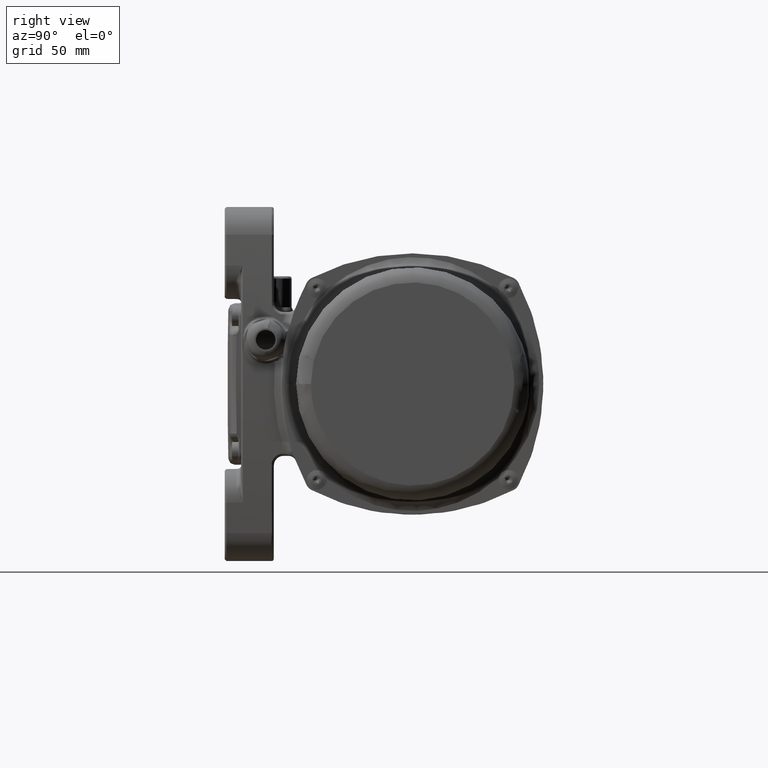
[diagram: clean part render]
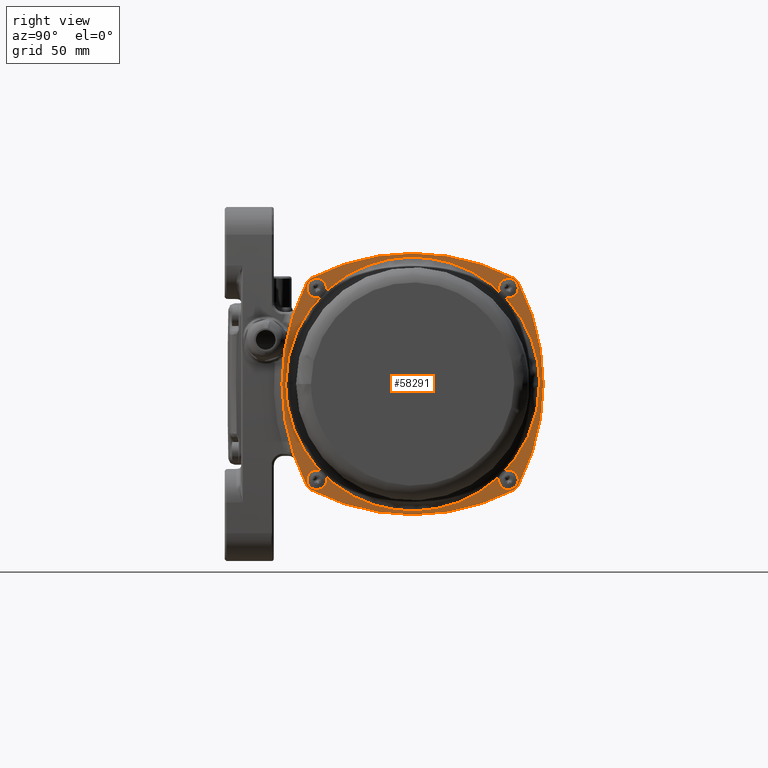
[diagram: same view with one face highlighted and labeled with its STEP entity id]
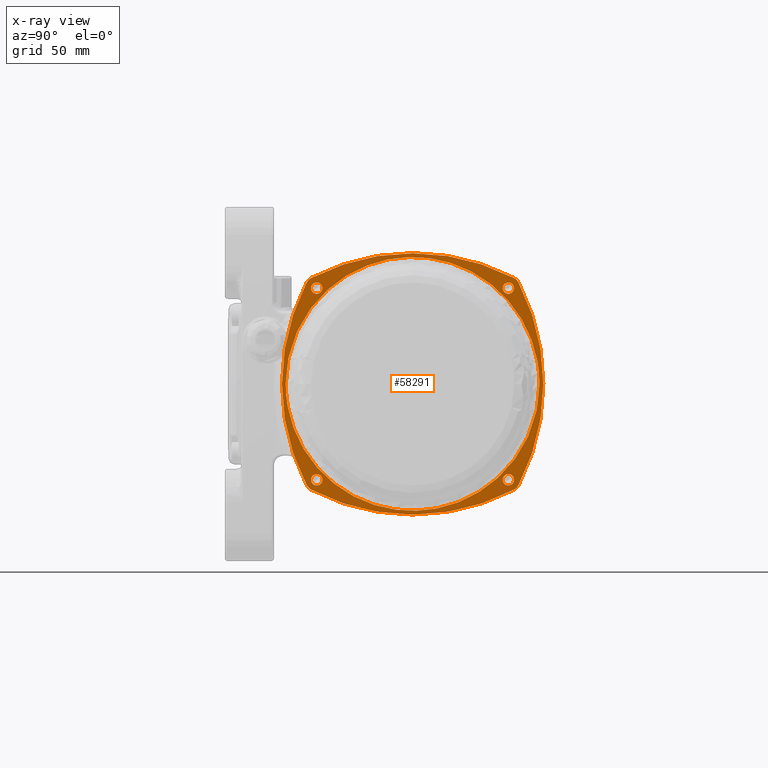
[diagram: x-ray of the same camera — body ghosted, the highlighted face saturated]
A machine part, right view. The second image highlights one B-rep face of the part: STEP entity #58291.
The next image is the same camera in x-ray: the body ghosted, the highlighted face saturated — about 0% of this face is hidden behind the body in this view.
In plain terms, the highlighted planar face has unit normal (1, -0, -0).
Its self-contained STEP definition (entity closure, byte-faithful):
#5 = CARTESIAN_POINT ( 'NONE',  ( 80.19999999999859600, 150.9799825991071600, -68.86753657182104900 ) ) ;
#194 = CARTESIAN_POINT ( 'NONE',  ( 80.19999999999836900, 72.62133897738370100, -65.12577603979583800 ) ) ;
#532 = CARTESIAN_POINT ( 'NONE',  ( 80.19999999999825500, 42.55207429368724100, 28.08260039417437400 ) ) ;
#637 = CARTESIAN_POINT ( 'NONE',  ( 80.19999999999828300, 45.46462305897605900, 34.67430247577185300 ) ) ;
#1061 = CARTESIAN_POINT ( 'NONE',  ( 80.19999999999836900, 79.16631415789329700, 68.94377165543974700 ) ) ;
#1350 = CARTESIAN_POINT ( 'NONE',  ( 80.19999999999868100, 176.1632698643624300, 47.93875855060392200 ) ) ;
#1708 = EDGE_CURVE ( 'NONE', #21956, #21956, #33092, .T. ) ;
#2140 = CARTESIAN_POINT ( 'NONE',  ( 80.19999999999871000, 191.4297175979648100, -13.99248577885800900 ) ) ;
#2226 = CARTESIAN_POINT ( 'NONE',  ( 80.19999999999858200, 158.4907685807945100, -64.38974392060535500 ) ) ;
#2322 = CARTESIAN_POINT ( 'NONE',  ( 80.19999999999846800, 112.6239196339482600, -77.70001621762439500 ) ) ;
#2417 = CARTESIAN_POINT ( 'NONE',  ( 80.19999999999838300, 83.39953906687071600, -71.00465306964903800 ) ) ;
#2511 = CARTESIAN_POINT ( 'NONE',  ( 80.19999999999825500, 49.24333705440260900, -41.41369409037635300 ) ) ;
#3175 = CARTESIAN_POINT ( 'NONE',  ( 80.19999999999855300, 135.3340558239235300, 74.99323758172485600 ) ) ;
#3444 = FACE_BOUND ( 'NONE', #124333, .T. ) ;
#3676 = CARTESIAN_POINT ( 'NONE',  ( 80.19999999999872400, 191.3886807148080300, 14.21481246684500600 ) ) ;
#4024 = DIRECTION ( 'NONE',  ( -1.000000000000000000, -2.553247579601915400E-015, 1.095781623858763900E-016 ) ) ;
#4634 = CARTESIAN_POINT ( 'NONE',  ( 80.19999999999826900, 46.13246342815289600, -35.97998259906626100 ) ) ;
#4737 = CARTESIAN_POINT ( 'NONE',  ( 80.19999999999825500, 38.62555035988853500, -14.29107560081424200 ) ) ;
#4866 = CARTESIAN_POINT ( 'NONE',  ( 80.19999999999831200, 65.50667284944728400, 59.89835687458333500 ) ) ;
#5191 = ORIENTED_EDGE ( 'NONE', *, *, #70279, .T. ) ;
#5405 = CARTESIAN_POINT ( 'NONE',  ( 80.19999999999836900, 85.87121331642342200, 72.03367316343592100 ) ) ;
#5589 = CARTESIAN_POINT ( 'NONE',  ( 80.19999999999862400, 155.5700417191543500, 66.27313777822422500 ) ) ;
#5690 = CARTESIAN_POINT ( 'NONE',  ( 80.19999999999869500, 187.1243960893374700, 28.90273369626340400 ) ) ;
#6351 = CARTESIAN_POINT ( 'NONE',  ( 80.19999999999869500, 185.0381111009422700, -33.65555184965100500 ) ) ;
#6532 = CARTESIAN_POINT ( 'NONE',  ( 80.19999999999838300, 94.66594417625130100, -74.99323758174225000 ) ) ;
#6723 = CARTESIAN_POINT ( 'NONE',  ( 80.19999999999826900, 40.61224931771577900, -22.44840525261978900 ) ) ;
#6955 = CARTESIAN_POINT ( 'NONE',  ( 80.19999999999822600, 38.82298461586766800, 15.35883374503443500 ) ) ;
#7141 = EDGE_CURVE ( 'NONE', #109365, #48003, #131660, .T. ) ;
#7487 = CARTESIAN_POINT ( 'NONE',  ( 80.19999999999841100, 80.46672867614469700, 69.61632036099959500 ) ) ;
#7743 = DIRECTION ( 'NONE',  ( 1.000000000000000000, -2.857509198010490300E-015, 5.301178615226510500E-015 ) ) ;
#8071 = FACE_BOUND ( 'NONE', #68252, .T. ) ;
#8118 = DIRECTION ( 'NONE',  ( 1.000000000000000000, 2.553247579601915400E-015, -1.095781623858763900E-016 ) ) ;
#8299 = DIRECTION ( 'NONE',  ( 5.571751238825134900E-015, 0.0000000000000000000, -1.000000000000000000 ) ) ;
#8568 = CARTESIAN_POINT ( 'NONE',  ( 80.19999999999869500, 189.7855249239890200, -21.08129963454412300 ) ) ;
#8749 = CARTESIAN_POINT ( 'NONE',  ( 80.19999999999841100, 109.0745432128569800, -77.53788177158922700 ) ) ;
#8857 = CARTESIAN_POINT ( 'NONE',  ( 80.19999999999839700, 88.47902305341348500, -73.03862538002873400 ) ) ;
#8949 = CARTESIAN_POINT ( 'NONE',  ( 80.19999999999829800, 53.83673013552249400, -47.93875855042821100 ) ) ;
#9176 = CARTESIAN_POINT ( 'NONE',  ( 80.19999999999826900, 47.53911634832561400, 38.59240479862607000 ) ) ;
#9281 = AXIS2_PLACEMENT_3D ( 'NONE', #15206, #103074, #83748 ) ;
#9378 = CARTESIAN_POINT ( 'NONE',  ( 80.19999999999825500, 38.24250200229475600, 12.09191294807103600 ) ) ;
#9517 = CARTESIAN_POINT ( 'NONE',  ( 80.19999999999831200, 65.76698411111496500, 60.11248587712410100 ) ) ;
#9608 = CARTESIAN_POINT ( 'NONE',  ( 80.19999999999853900, 128.1156579485853800, 76.58609322671679800 ) ) ;
#9703 = CARTESIAN_POINT ( 'NONE',  ( 80.19999999999858200, 144.8088007224792800, 71.76638672674565100 ) ) ;
#9888 = CARTESIAN_POINT ( 'NONE',  ( 80.19999999999866700, 173.8207830972197300, 50.77595529161301600 ) ) ;
#10104 = DIRECTION ( 'NONE',  ( 3.965082230804126700E-015, 0.0000000000000000000, -1.000000000000000000 ) ) ;
#10208 = ORIENTED_EDGE ( 'NONE', *, *, #123850, .T. ) ;
#10301 = ORIENTED_EDGE ( 'NONE', *, *, #66133, .T. ) ;
#10479 = AXIS2_PLACEMENT_3D ( 'NONE', #72256, #74378, #63666 ) ;
#10699 = CARTESIAN_POINT ( 'NONE',  ( 80.19999999999865300, 171.8384138481569000, -53.04595366568045700 ) ) ;
#10981 = CARTESIAN_POINT ( 'NONE',  ( 80.19999999999835400, 80.32569752411957600, -69.53537694095595600 ) ) ;
#11072 = CARTESIAN_POINT ( 'NONE',  ( 80.19999999999835400, 63.94389749811130500, -58.63240277140493400 ) ) ;
#11109 = AXIS2_PLACEMENT_3D ( 'NONE', #91778, #8118, #78810 ) ;
#11844 = CARTESIAN_POINT ( 'NONE',  ( 80.19999999999839700, 86.32508796332761800, 72.21527306471836000 ) ) ;
#12022 = CARTESIAN_POINT ( 'NONE',  ( 80.19999999999863900, 156.5478048787638800, 65.66019958535280000 ) ) ;
#12118 = CARTESIAN_POINT ( 'NONE',  ( 80.19999999999868100, 183.9437716554747100, 35.83368584204140500 ) ) ;
#12216 = CARTESIAN_POINT ( 'NONE',  ( 80.19999999999868100, 189.6125547181814000, 21.68554665506316000 ) ) ;
#12802 = CARTESIAN_POINT ( 'NONE',  ( 80.19999999999869500, 189.7225840281503500, -21.30332561212014800 ) ) ;
#12983 = CARTESIAN_POINT ( 'NONE',  ( 80.19999999999842500, 101.3727720529081200, -76.49593818599271300 ) ) ;
#13091 = CARTESIAN_POINT ( 'NONE',  ( 80.19999999999844000, 102.9082883679026100, -76.75753525032969500 ) ) ;
#13183 = CARTESIAN_POINT ( 'NONE',  ( 80.19999999999836900, 79.81852091914562700, -69.27914406710861800 ) ) ;
#13424 = CARTESIAN_POINT ( 'NONE',  ( 80.19999999999828300, 39.72688432182958000, 19.28538114991150800 ) ) ;
#13525 = CARTESIAN_POINT ( 'NONE',  ( 80.19999999999828300, 49.87422396020232900, 42.37866102260751700 ) ) ;
#13962 = CARTESIAN_POINT ( 'NONE',  ( 80.19999999999841100, 93.54563705189120500, 74.67935623955220600 ) ) ;
#14026 = ORIENTED_EDGE ( 'NONE', *, *, #126173, .T. ) ;
#14239 = CARTESIAN_POINT ( 'NONE',  ( 80.19999999999863900, 175.1124858771155500, 49.23301588887522900 ) ) ;
#14464 = CIRCLE ( 'NONE', #44797, 6.999999999999999100 ) ;
#15010 = CARTESIAN_POINT ( 'NONE',  ( 80.19999999999869500, 189.9932375818629900, -20.33405582330410500 ) ) ;
#15206 = CARTESIAN_POINT ( 'NONE',  ( 80.19999999999871000, 173.6898628384820100, 58.68986283848499900 ) ) ;
#15297 = CARTESIAN_POINT ( 'NONE',  ( 80.19999999999841100, 93.76941419835928600, -74.74328154692793200 ) ) ;
#16038 = CARTESIAN_POINT ( 'NONE',  ( 80.19999999999846800, 100.5945498587809900, 76.35301836455130300 ) ) ;
#16100 = ORIENTED_EDGE ( 'NONE', *, *, #52018, .T. ) ;
#16134 = CARTESIAN_POINT ( 'NONE',  ( 80.19999999999841100, 86.24807423242684500, 72.18464689763141000 ) ) ;
#17491 = CARTESIAN_POINT ( 'NONE',  ( 80.19999999999834000, 66.28607783886296500, -60.53392266245984400 ) ) ;
#18268 = CARTESIAN_POINT ( 'NONE',  ( 80.19999999999844000, 105.5342900928534500, 77.26757660198278200 ) ) ;
#18459 = CARTESIAN_POINT ( 'NONE',  ( 80.19999999999861000, 150.1814790808371100, 69.27914406711136100 ) ) ;
#19049 = DIRECTION ( 'NONE',  ( 1.000000000000000000, -2.857509198010490300E-015, 5.301178615226510500E-015 ) ) ;
#19324 = CARTESIAN_POINT ( 'NONE',  ( 80.19999999999869500, 191.4163119426009400, -14.06551112342745000 ) ) ;
#19375 = ORIENTED_EDGE ( 'NONE', *, *, #19599, .T. ) ;
#19503 = CARTESIAN_POINT ( 'NONE',  ( 80.19999999999848200, 130.2050840612508000, -76.19885092240585300 ) ) ;
#19599 = EDGE_CURVE ( 'NONE', #118355, #118355, #118043, .T. ) ;
#19607 = CARTESIAN_POINT ( 'NONE',  ( 80.19999999999835400, 79.60163066874207500, -69.16828730819868600 ) ) ;
#20170 = AXIS2_PLACEMENT_3D ( 'NONE', #23248, #34399, #79378 ) ;
#20241 = CIRCLE ( 'NONE', #81717, 134.5000000000000000 ) ;
#20302 = VERTEX_POINT ( 'NONE', #121646 ) ;
#20354 = CARTESIAN_POINT ( 'NONE',  ( 80.19999999999855300, 135.8572917092313000, 74.84855087070324900 ) ) ;
#20635 = CARTESIAN_POINT ( 'NONE',  ( 80.19999999999868100, 187.1846468976435700, 28.75192576754365700 ) ) ;
#21406 = CARTESIAN_POINT ( 'NONE',  ( 80.19999999999869500, 180.6601995852499000, -41.54780487895308700 ) ) ;
#21956 = VERTEX_POINT ( 'NONE', #30508 ) ;
#22470 = CARTESIAN_POINT ( 'NONE',  ( 80.19999999999838300, 77.27581097595404500, 67.93336928728769000 ) ) ;
#22651 = CARTESIAN_POINT ( 'NONE',  ( 80.19999999999856800, 137.6032761959080800, 74.35053941862628300 ) ) ;
#22749 = CARTESIAN_POINT ( 'NONE',  ( 80.19999999999859600, 150.6139277760318600, 69.05754747943888100 ) ) ;
#22839 = CARTESIAN_POINT ( 'NONE',  ( 80.19999999999862400, 168.0459536661782600, 56.83841384762605700 ) ) ;
#23042 = CARTESIAN_POINT ( 'NONE',  ( 80.19999999999871000, 192.7000000000000200, 6.538406516772830100E-013 ) ) ;
#23178 = AXIS2_PLACEMENT_3D ( 'NONE', #29827, #4024, #63984 ) ;
#23248 = CARTESIAN_POINT ( 'NONE',  ( 80.19999999999790000, 115.0000000000000000, -54.50000000000000000 ) ) ;
#23522 = CARTESIAN_POINT ( 'NONE',  ( 80.19999999999865300, 167.5370030073555700, -57.27396544868995000 ) ) ;
#23608 = CARTESIAN_POINT ( 'NONE',  ( 80.19999999999859600, 156.4136940905452800, -65.75666294549181100 ) ) ;
#23691 = CARTESIAN_POINT ( 'NONE',  ( 80.19999999999841100, 94.14270829086201800, -74.84855087071191800 ) ) ;
#24237 = CARTESIAN_POINT ( 'NONE',  ( 80.19999999999829800, 54.46607733749650000, 48.71392216110109500 ) ) ;
#25240 = DIRECTION ( 'NONE',  ( -2.954653712665175000E-015, -1.000000000000000000, -1.387778780781411900E-017 ) ) ;
#25733 = CARTESIAN_POINT ( 'NONE',  ( 80.19999999999865300, 168.9940884232132700, -55.89031851445093900 ) ) ;
#25919 = CARTESIAN_POINT ( 'NONE',  ( 80.19999999999842500, 104.9594062788916500, -77.06494706605407400 ) ) ;
#25931 = VERTEX_POINT ( 'NONE', #74018 ) ;
#26022 = CARTESIAN_POINT ( 'NONE',  ( 80.19999999999838300, 86.54702658113249900, -72.30300491912001300 ) ) ;
#26308 = CARTESIAN_POINT ( 'NONE',  ( 80.19999999999871000, 176.9114528322640200, 64.90360969501090000 ) ) ;
#26361 = CARTESIAN_POINT ( 'NONE',  ( 80.19999999999826900, 42.72556374084108900, 28.52546882111943600 ) ) ;
#26568 = CARTESIAN_POINT ( 'NONE',  ( 80.19999999999825500, 40.21447507604532500, 21.08129963469678700 ) ) ;
#26785 = CARTESIAN_POINT ( 'NONE',  ( 80.19999999999849600, 110.2478392679334900, 77.69996756481275200 ) ) ;
#26886 = CARTESIAN_POINT ( 'NONE',  ( 80.19999999999858200, 146.6004609330574900, 71.00465306965627100 ) ) ;
#27064 = CARTESIAN_POINT ( 'NONE',  ( 80.19999999999866700, 180.7566629455949400, 41.41369409038097200 ) ) ;
#28234 = CARTESIAN_POINT ( 'NONE',  ( 80.19999999999826900, 46.24715546202788400, -36.19922853004394600 ) ) ;
#28237 = DIRECTION ( 'NONE',  ( 7.930164461608253300E-015, 1.000000000000000000, 0.0000000000000000000 ) ) ;
#28466 = CARTESIAN_POINT ( 'NONE',  ( 80.19999999999831200, 64.22404470882601400, 58.82078309765950100 ) ) ;
#28987 = CARTESIAN_POINT ( 'NONE',  ( 80.19999999999842500, 94.81332118048628400, 75.04218403642818200 ) ) ;
#29282 = CARTESIAN_POINT ( 'NONE',  ( 80.19999999999868100, 186.8195593426826000, 29.65513131258349200 ) ) ;
#29374 = CARTESIAN_POINT ( 'NONE',  ( 80.19999999999871000, 190.0421840363760000, 20.18667881969371800 ) ) ;
#29827 = CARTESIAN_POINT ( 'NONE',  ( 80.19999999999829800, 56.31013716151569800, 58.68986283848379800 ) ) ;
#29958 = CARTESIAN_POINT ( 'NONE',  ( 80.19999999999868100, 180.2146697010023500, -42.24173237119038000 ) ) ;
#30143 = CARTESIAN_POINT ( 'NONE',  ( 80.19999999999842500, 99.64116625501645800, -76.17701538411927200 ) ) ;
#30244 = CARTESIAN_POINT ( 'NONE',  ( 80.19999999999834000, 74.42995828078777300, -66.27313777816975500 ) ) ;
#30344 = CARTESIAN_POINT ( 'NONE',  ( 80.19999999999838300, 86.69512902078149400, -72.36111198019691000 ) ) ;
#30508 = CARTESIAN_POINT ( 'NONE',  ( 80.19999999999869500, 173.6898628384820100, 55.18986283848499900 ) ) ;
#30537 = CARTESIAN_POINT ( 'NONE',  ( 80.19999999999825500, 40.34320000352962400, -21.53272938235000200 ) ) ;
#30579 = CARTESIAN_POINT ( 'NONE',  ( 80.19999999999826900, 37.30003243886481100, 2.376343309363998700 ) ) ;
#30685 = CARTESIAN_POINT ( 'NONE',  ( 80.19999999999829800, 53.84519461703672500, 47.93217319400359600 ) ) ;
#31111 = CARTESIAN_POINT ( 'NONE',  ( 80.19999999999844000, 96.61331505109787100, 75.51106378475388700 ) ) ;
#32176 = CARTESIAN_POINT ( 'NONE',  ( 80.19999999999866700, 175.7413265072916300, -48.45505787471788000 ) ) ;
#32554 = CARTESIAN_POINT ( 'NONE',  ( 80.19999999999829800, 51.26716224581233000, -44.45446057611685100 ) ) ;
#32684 = CARTESIAN_POINT ( 'NONE',  ( 80.19999999999825500, 40.64946058120780500, 22.60327619538036400 ) ) ;
#32778 = CARTESIAN_POINT ( 'NONE',  ( 80.19999999999831200, 50.69524732317439200, 43.63449236137663000 ) ) ;
#33092 = CIRCLE ( 'NONE', #9281, 3.500000000000003100 ) ;
#33480 = CARTESIAN_POINT ( 'NONE',  ( 80.19999999999856800, 160.2787090771358000, 63.16841519946616000 ) ) ;
#33701 = CARTESIAN_POINT ( 'NONE',  ( 80.19999999999829800, 56.31013716151650100, -58.68986283848330000 ) ) ;
#33782 = CARTESIAN_POINT ( 'NONE',  ( 80.19999999999819800, 22.99999999999944900, 6.610010967156719500E-013 ) ) ;
#33927 = DIRECTION ( 'NONE',  ( 1.000000000000000000, 2.553247579601915400E-015, -1.095781623858763900E-016 ) ) ;
#34276 = CARTESIAN_POINT ( 'NONE',  ( 80.19999999999872400, 190.7948905686539000, -17.17922018852097600 ) ) ;
#34356 = CARTESIAN_POINT ( 'NONE',  ( 80.19999999999859600, 157.6562608064604100, -64.94428725621322900 ) ) ;
#34399 = DIRECTION ( 'NONE',  ( 1.000000000000000000, -2.857509198010415400E-015, -5.520334939998260000E-015 ) ) ;
#34402 = CARTESIAN_POINT ( 'NONE',  ( 80.19999999999829800, 50.09639030498939900, 61.91145283226489900 ) ) ;
#34454 = CARTESIAN_POINT ( 'NONE',  ( 80.19999999999849600, 131.2686283202194200, -75.98223163102952100 ) ) ;
#34560 = CARTESIAN_POINT ( 'NONE',  ( 80.19999999999839700, 87.43684944979936800, -72.64806300882222000 ) ) ;
#34649 = CARTESIAN_POINT ( 'NONE',  ( 80.19999999999828300, 52.61727117469816800, -46.35520832443528900 ) ) ;
#35324 = CARTESIAN_POINT ( 'NONE',  ( 80.19999999999838300, 73.58630590908592200, 65.75666294530267900 ) ) ;
#35482 = ORIENTED_EDGE ( 'NONE', *, *, #125114, .T. ) ;
#35503 = CARTESIAN_POINT ( 'NONE',  ( 80.19999999999859600, 136.2305858016682100, 74.74328154692628300 ) ) ;
#35697 = CARTESIAN_POINT ( 'NONE',  ( 80.19999999999868100, 179.3897439205234100, 43.49076858092743700 ) ) ;
#35888 = CARTESIAN_POINT ( 'NONE',  ( 80.19999999999871000, 192.2675441594051100, 9.465885216442751800 ) ) ;
#36473 = CARTESIAN_POINT ( 'NONE',  ( 80.19999999999871000, 188.7809011873089800, -24.42353407662285400 ) ) ;
#36483 = EDGE_LOOP ( 'NONE', ( #19375 ) ) ;
#36565 = CARTESIAN_POINT ( 'NONE',  ( 80.19999999999856800, 147.7820535375337600, -70.46692059170408100 ) ) ;
#36859 = CARTESIAN_POINT ( 'NONE',  ( 80.19999999999824100, 42.78472693527894000, -28.67491203666370900 ) ) ;
#36960 = CARTESIAN_POINT ( 'NONE',  ( 80.19999999999825500, 38.60392847585548300, -14.17503420332892900 ) ) ;
#37500 = CARTESIAN_POINT ( 'NONE',  ( 80.19999999999855300, 136.0812996347386800, 74.78552492394625500 ) ) ;
#37686 = CARTESIAN_POINT ( 'NONE',  ( 80.19999999999863900, 163.7139221611296600, 60.53392266247448100 ) ) ;
#37778 = FACE_BOUND ( 'NONE', #122027, .T. ) ;
#37791 = CARTESIAN_POINT ( 'NONE',  ( 80.19999999999869500, 183.9823765162691700, 35.75930979025466200 ) ) ;
#37876 = CARTESIAN_POINT ( 'NONE',  ( 80.19999999999871000, 189.6793562395547500, 21.45436294809788100 ) ) ;
#38649 = CARTESIAN_POINT ( 'NONE',  ( 80.19999999999859600, 161.3552083244389600, -62.38272882528875100 ) ) ;
#38736 = CARTESIAN_POINT ( 'NONE',  ( 80.19999999999851100, 129.6721829455694600, -76.30241941016346600 ) ) ;
#38847 = CARTESIAN_POINT ( 'NONE',  ( 80.19999999999835400, 69.72129092333990700, -63.16841519979747200 ) ) ;
#38936 = CARTESIAN_POINT ( 'NONE',  ( 80.19999999999824100, 43.61837627415243200, -30.70337120668284600 ) ) ;
#39079 = CARTESIAN_POINT ( 'NONE',  ( 80.19999999999872400, 177.1898628384830100, -58.68986283848250500 ) ) ;
#39164 = CARTESIAN_POINT ( 'NONE',  ( 80.19999999999829800, 43.23361327317059700, 29.80880072237866300 ) ) ;
#39593 = CARTESIAN_POINT ( 'NONE',  ( 80.19999999999836900, 78.80077146973491200, 68.75284453785140200 ) ) ;
#39686 = CARTESIAN_POINT ( 'NONE',  ( 80.19999999999853900, 129.0655029385554300, 76.41631345717695500 ) ) ;
#39745 = ORIENTED_EDGE ( 'NONE', *, *, #132339, .T. ) ;
#39870 = CARTESIAN_POINT ( 'NONE',  ( 80.19999999999862400, 156.9644772399133200, 65.39342637636775600 ) ) ;
#40666 = CARTESIAN_POINT ( 'NONE',  ( 80.19999999999866700, 187.3611119802061500, -28.30487097919507600 ) ) ;
#40722 = CIRCLE ( 'NONE', #62094, 134.5000000000000300 ) ;
#41134 = CARTESIAN_POINT ( 'NONE',  ( 80.19999999999824100, 38.69758058988723100, -14.67218294577910600 ) ) ;
#41281 = CARTESIAN_POINT ( 'NONE',  ( 80.19999999999828300, 42.35193699119109600, 27.56315055017795100 ) ) ;
#41716 = CARTESIAN_POINT ( 'NONE',  ( 80.19999999999834000, 68.64479167532957100, 62.38272882505020800 ) ) ;
#41808 = CARTESIAN_POINT ( 'NONE',  ( 80.19999999999844000, 99.79491593860800000, 76.19885092237233000 ) ) ;
#42889 = CARTESIAN_POINT ( 'NONE',  ( 80.19999999999869500, 191.7574979977044100, -12.09191294784524100 ) ) ;
#42982 = CARTESIAN_POINT ( 'NONE',  ( 80.19999999999855300, 151.1992285301134300, -68.75284453792825400 ) ) ;
#43083 = CARTESIAN_POINT ( 'NONE',  ( 80.19999999999851100, 140.6276263234294400, -73.37135147938559500 ) ) ;
#43414 = CARTESIAN_POINT ( 'NONE',  ( 80.19999999999825500, 38.57028240203447200, 13.99248577887744100 ) ) ;
#43525 = CARTESIAN_POINT ( 'NONE',  ( 80.19999999999829800, 43.99534693019690900, 31.60046093288075400 ) ) ;
#43726 = CARTESIAN_POINT ( 'NONE',  ( 80.19999999999825500, 42.69699508088125800, 28.45297341886417200 ) ) ;
#43959 = CARTESIAN_POINT ( 'NONE',  ( 80.19999999999845400, 93.08534625187708400, 74.54584057707543800 ) ) ;
#44139 = CARTESIAN_POINT ( 'NONE',  ( 80.19999999999861000, 149.6743024758486100, 69.53537694095994900 ) ) ;
#44239 = CARTESIAN_POINT ( 'NONE',  ( 80.19999999999868100, 183.8675365718459600, 35.97998259906837100 ) ) ;
#44244 = VERTEX_POINT ( 'NONE', #102100 ) ;
#44440 = CARTESIAN_POINT ( 'NONE',  ( 80.19999999999871000, 191.3530183645392200, 14.40545014125746800 ) ) ;
#44537 = DIRECTION ( 'NONE',  ( 1.000000000000000000, -2.954653712665175000E-015, -1.095781623858763900E-016 ) ) ;
#44797 = AXIS2_PLACEMENT_3D ( 'NONE', #89204, #7743, #82743 ) ;
#44799 = AXIS2_PLACEMENT_3D ( 'NONE', #113927, #73134, #107493 ) ;
#44801 = CIRCLE ( 'NONE', #11109, 6.999999999999999100 ) ;
#45033 = CARTESIAN_POINT ( 'NONE',  ( 80.19999999999869500, 187.4479257063347000, -28.08260039414702200 ) ) ;
#46144 = CARTESIAN_POINT ( 'NONE',  ( 80.19999999999855300, 128.6272279470875000, 76.49593818598744100 ) ) ;
#46335 = CARTESIAN_POINT ( 'NONE',  ( 80.19999999999861000, 162.1440680398727400, 61.76981873845226500 ) ) ;
#46429 = CARTESIAN_POINT ( 'NONE',  ( 80.19999999999866700, 179.6673862137359400, 43.07490384262853700 ) ) ;
#46539 = DIRECTION ( 'NONE',  ( -1.000000000000000000, 2.857509198010490300E-015, -5.301178615226510500E-015 ) ) ;
#47115 = CARTESIAN_POINT ( 'NONE',  ( 80.19999999999865300, 178.1684151990170100, -45.27870907774342200 ) ) ;
#47210 = CARTESIAN_POINT ( 'NONE',  ( 80.19999999999863900, 162.9387585504304900, -61.16326986446969700 ) ) ;
#47299 = CARTESIAN_POINT ( 'NONE',  ( 80.19999999999838300, 97.82077981046407400, -75.79489056837876100 ) ) ;
#47401 = CARTESIAN_POINT ( 'NONE',  ( 80.19999999999834000, 73.03552276006605800, -65.39342637634776200 ) ) ;
#47496 = CARTESIAN_POINT ( 'NONE',  ( 80.19999999999825500, 44.53307940841904200, -32.78205353771532100 ) ) ;
#47701 = VERTEX_POINT ( 'NONE', #60680 ) ;
#47730 = CARTESIAN_POINT ( 'NONE',  ( 80.19999999999826900, 41.96137461999476400, 26.52097694654735700 ) ) ;
#47834 = CARTESIAN_POINT ( 'NONE',  ( 80.19999999999831200, 56.36759722893680200, 51.05610250217991800 ) ) ;
#48003 = VERTEX_POINT ( 'NONE', #97162 ) ;
#48278 = CARTESIAN_POINT ( 'NONE',  ( 80.19999999999846800, 100.7851875331665400, 76.38868071481238100 ) ) ;
#48547 = FACE_BOUND ( 'NONE', #36483, .T. ) ;
#48562 = CARTESIAN_POINT ( 'NONE',  ( 80.19999999999871000, 189.5458405770875500, 21.91465374807826500 ) ) ;
#49351 = CARTESIAN_POINT ( 'NONE',  ( 80.19999999999871000, 192.7000000000000200, 6.538406516772830100E-013 ) ) ;
#49432 = CARTESIAN_POINT ( 'NONE',  ( 80.19999999999862400, 154.7314402852384800, -66.79638625196707800 ) ) ;
#49525 = CARTESIAN_POINT ( 'NONE',  ( 80.19999999999852500, 136.5327293822938700, -74.65679999648823200 ) ) ;
#50373 = CARTESIAN_POINT ( 'NONE',  ( 80.19999999999844000, 93.31445334491084500, 74.61255471817467800 ) ) ;
#50751 = CARTESIAN_POINT ( 'NONE',  ( 80.19999999999868100, 177.3827288251010500, 46.35520832474178100 ) ) ;
#51442 = CARTESIAN_POINT ( 'NONE',  ( 80.19999999999869500, 192.6999675611342600, -2.376343309069466300 ) ) ;
#51624 = CARTESIAN_POINT ( 'NONE',  ( 80.19999999999848200, 119.7521607321017900, -77.69996756474923000 ) ) ;
#52018 = EDGE_CURVE ( 'NONE', #95097, #95097, #118344, .T. ) ;
#52573 = CARTESIAN_POINT ( 'NONE',  ( 80.19999999999842500, 92.55159474747419800, 74.38775068232254700 ) ) ;
#52848 = CARTESIAN_POINT ( 'NONE',  ( 80.19999999999866700, 183.7528445379705900, 36.19922853004661100 ) ) ;
#53539 = CARTESIAN_POINT ( 'NONE',  ( 80.19999999999871000, 189.7432815469477400, -21.23058580156846300 ) ) ;
#53810 = CARTESIAN_POINT ( 'NONE',  ( 80.19999999999855300, 145.7033712065468800, -71.38162372593966200 ) ) ;
#54006 = CARTESIAN_POINT ( 'NONE',  ( 80.19999999999824100, 42.28700216216570600, -27.41770927364849100 ) ) ;
#54007 = DIRECTION ( 'NONE',  ( -1.000000000000000000, 8.268265975622860600E-015, 1.095781623858763900E-016 ) ) ;
#54098 = CARTESIAN_POINT ( 'NONE',  ( 80.19999999999825500, 39.48893621538698500, -18.38668494947569700 ) ) ;
#54552 = CARTESIAN_POINT ( 'NONE',  ( 80.19999999999835400, 75.26855971411659100, 66.79638625163502800 ) ) ;
#54928 = CARTESIAN_POINT ( 'NONE',  ( 80.19999999999869500, 187.7129978379144300, 27.41770927341609400 ) ) ;
#55720 = CARTESIAN_POINT ( 'NONE',  ( 80.19999999999866700, 184.5353769409920200, -34.67430247579142800 ) ) ;
#55994 = CARTESIAN_POINT ( 'NONE',  ( 80.19999999999832600, 67.06782680605863300, -61.15480538296789300 ) ) ;
#56192 = CARTESIAN_POINT ( 'NONE',  ( 80.19999999999822600, 38.61131928519298400, -14.21481246685291600 ) ) ;
#56232 = CARTESIAN_POINT ( 'NONE',  ( 80.19999999999826900, 38.59011625709939600, 14.10039465453026300 ) ) ;
#56856 = CARTESIAN_POINT ( 'NONE',  ( 80.19999999999855300, 130.3588337452121700, 76.17701538409619400 ) ) ;
#56952 = CARTESIAN_POINT ( 'NONE',  ( 80.19999999999862400, 143.0826003943903100, 72.44792570624491600 ) ) ;
#57162 = CARTESIAN_POINT ( 'NONE',  ( 80.19999999999871000, 187.0336731634792800, 29.12878668347737200 ) ) ;
#57847 = CARTESIAN_POINT ( 'NONE',  ( 80.19999999999868100, 189.8485508707768500, -20.85729170889937800 ) ) ;
#58028 = CARTESIAN_POINT ( 'NONE',  ( 80.19999999999855300, 143.6749120366929400, -72.21527306471058700 ) ) ;
#58217 = CARTESIAN_POINT ( 'NONE',  ( 80.19999999999825500, 40.45415942294529500, -21.91465374817291300 ) ) ;
#58291 = ADVANCED_FACE ( 'NONE', ( #95666, #3444, #95972, #37778, #48547, #8071 ), #91634, .T. ) ;
#58887 = CARTESIAN_POINT ( 'NONE',  ( 80.19999999999835400, 72.34373919358505100, 64.94428725623838300 ) ) ;
#58950 = ORIENTED_EDGE ( 'NONE', *, *, #113364, .T. ) ;
#58970 = CARTESIAN_POINT ( 'NONE',  ( 80.19999999999844000, 100.3278170543546000, 76.30241941014611500 ) ) ;
#59817 = ORIENTED_EDGE ( 'NONE', *, *, #95971, .T. ) ;
#60019 = CARTESIAN_POINT ( 'NONE',  ( 80.19999999999872400, 192.0648832044108500, -10.04093883381964700 ) ) ;
#60113 = CARTESIAN_POINT ( 'NONE',  ( 80.19999999999858200, 150.7593097902541500, -68.98237651626773500 ) ) ;
#60209 = CARTESIAN_POINT ( 'NONE',  ( 80.19999999999856800, 143.9027336962610700, -72.12439608934227000 ) ) ;
#60319 = CARTESIAN_POINT ( 'NONE',  ( 80.19999999999838300, 92.39672380458986800, -74.35053941880985900 ) ) ;
#60418 = CARTESIAN_POINT ( 'NONE',  ( 80.19999999999825500, 42.87560391067383800, -28.90273369628547300 ) ) ;
#60525 = EDGE_CURVE ( 'NONE', #96038, #82932, #77715, .T. ) ;
#60680 = CARTESIAN_POINT ( 'NONE',  ( 80.19999999999871000, 179.9036096950094900, -61.91145283226390500 ) ) ;
#60835 = CARTESIAN_POINT ( 'NONE',  ( 80.19999999999824100, 40.00676241824749000, 20.33405582378775700 ) ) ;
#61061 = CARTESIAN_POINT ( 'NONE',  ( 80.19999999999856800, 134.2853811501449900, 75.27311567812283500 ) ) ;
#61337 = CARTESIAN_POINT ( 'NONE',  ( 80.19999999999869500, 185.4669205916683800, 32.78205353754663800 ) ) ;
#62094 = AXIS2_PLACEMENT_3D ( 'NONE', #130340, #33927, #70250 ) ;
#62130 = CARTESIAN_POINT ( 'NONE',  ( 80.19999999999868100, 180.3934263763054000, -41.96447724002698000 ) ) ;
#62302 = CARTESIAN_POINT ( 'NONE',  ( 80.19999999999855300, 144.6551313125774800, -71.81955934269814200 ) ) ;
#62737 = CARTESIAN_POINT ( 'NONE',  ( 80.19999999999834000, 64.99187545803206900, 59.46925413832433800 ) ) ;
#63153 = CARTESIAN_POINT ( 'NONE',  ( 80.19999999999836900, 72.20297351249625700, 64.85161687120560700 ) ) ;
#63246 = CARTESIAN_POINT ( 'NONE',  ( 80.19999999999839700, 85.34486868723095700, 71.81955934260069800 ) ) ;
#63331 = CARTESIAN_POINT ( 'NONE',  ( 80.19999999999856800, 136.3033256120834600, 74.72258402816487400 ) ) ;
#63527 = CARTESIAN_POINT ( 'NONE',  ( 80.19999999999868100, 183.4828539332370100, 36.70940793706041200 ) ) ;
#63666 = DIRECTION ( 'NONE',  ( 1.982541115402065300E-015, -1.000000000000000000, 0.0000000000000000000 ) ) ;
#63725 = CARTESIAN_POINT ( 'NONE',  ( 80.19999999999866700, 191.3024194101238300, 14.67218294571944900 ) ) ;
#63984 = DIRECTION ( 'NONE',  ( -3.965082230804126700E-015, 1.000000000000000000, 0.0000000000000000000 ) ) ;
#64221 = CARTESIAN_POINT ( 'NONE',  ( 80.19999999999865300, 176.7698187381149900, -47.14406804032837100 ) ) ;
#64827 = CARTESIAN_POINT ( 'NONE',  ( 80.19999999999824100, 39.20510943159902700, 17.17922018962472200 ) ) ;
#64930 = CARTESIAN_POINT ( 'NONE',  ( 80.19999999999829800, 48.72686222171508800, 40.57004171895571400 ) ) ;
#66133 = EDGE_CURVE ( 'NONE', #20302, #97190, #120213, .T. ) ;
#66145 = CARTESIAN_POINT ( 'NONE',  ( 80.19999999999790000, 115.0000000000000000, 54.50000000000079600 ) ) ;
#66413 = CARTESIAN_POINT ( 'NONE',  ( 80.19999999999869500, 183.4135849502776000, -36.85938355140891100 ) ) ;
#66595 = CARTESIAN_POINT ( 'NONE',  ( 80.19999999999851100, 129.2910756007519200, -76.37444964012597400 ) ) ;
#67453 = CARTESIAN_POINT ( 'NONE',  ( 80.19999999999851100, 120.9254567871102500, 77.53788177153609200 ) ) ;
#67552 = CARTESIAN_POINT ( 'NONE',  ( 80.19999999999859600, 143.5254688211121300, 72.27443625916453100 ) ) ;
#67705 = CIRCLE ( 'NONE', #20170, 134.5000000000000000 ) ;
#67826 = CARTESIAN_POINT ( 'NONE',  ( 80.19999999999862400, 166.0561025019436600, 58.63240277129879300 ) ) ;
#68252 = EDGE_LOOP ( 'NONE', ( #104856 ) ) ;
#68513 = CARTESIAN_POINT ( 'NONE',  ( 80.19999999999871000, 181.2731377780485800, -40.57004171947897200 ) ) ;
#68691 = CARTESIAN_POINT ( 'NONE',  ( 80.19999999999858200, 142.4177092731895000, -72.71299783798609400 ) ) ;
#68797 = CARTESIAN_POINT ( 'NONE',  ( 80.19999999999838300, 86.47453117888983300, -72.27443625916339400 ) ) ;
#69592 = ORIENTED_EDGE ( 'NONE', *, *, #60525, .T. ) ;
#69624 = CARTESIAN_POINT ( 'NONE',  ( 80.19999999999839700, 86.09726630367860900, 72.12439608931261100 ) ) ;
#69810 = CARTESIAN_POINT ( 'NONE',  ( 80.19999999999862400, 153.5924047988912400, 67.46088365159342000 ) ) ;
#70250 = DIRECTION ( 'NONE',  ( -2.476333883922281700E-015, 1.000000000000000000, -1.762479051592435600E-015 ) ) ;
#70279 = EDGE_CURVE ( 'NONE', #130225, #85632, #44801, .T. ) ;
#70294 = CARTESIAN_POINT ( 'NONE',  ( 80.19999999999871000, 192.7000000000000200, 6.538406516772830100E-013 ) ) ;
#70607 = CARTESIAN_POINT ( 'NONE',  ( 80.19999999999866700, 184.0575474794459900, -35.61392777601600600 ) ) ;
#70617 = B_SPLINE_CURVE_WITH_KNOTS ( 'NONE', 3,
 ( #94883, #30579, #125175, #101299, #9378, #75539, #122743, #112028, #43414, #105585, #56232, #6955, #64827, #13424, #60835, #99193, #26568, #73336, #90527, #32684, #88433, #47730, #41281, #532, #101587, #43726, #26361, #39164, #43525, #99284, #637, #118537, #71326, #107798, #92864, #109918, #9176, #64930, #94987, #120660, #112122, #13525, #32778, #88529, #86291, #30685, #105692, #24237, #47834, #127090, #122838, #82071, #28466, #62737, #4866, #9517, #121083, #41716, #84527, #95303, #131731, #63153, #58887, #35324, #54552, #22470, #110347, #39593, #114648, #1061, #93287, #7487, #76062, #82497, #63246, #5405, #69624, #16134, #11844, #110441, #99718, #116845, #52573, #43959, #50373, #106117, #13962, #28987, #31111, #91153, #41808, #58970, #16038, #97603, #48278, #91059, #18268, #26785, #127632, #67453, #101805, #86824, #9608, #46144, #118968, #121179, #39686, #114743, #56856, #131922, #61061, #3175, #20354, #37500, #35503, #63331, #22651, #89050, #114837, #84709, #56952, #74049, #125507, #67552, #9703, #26886, #101899, #44139, #18459, #125597, #125694, #22749, #127821, #69810, #5589, #12022, #39870, #97787, #104206, #95582, #33480, #46335, #121357, #78379, #37686, #67826, #22839, #93569, #97878, #9888, #78472, #117127, #14239, #1350, #50751, #125784, #35697, #46429, #100003, #84900, #27064, #110735, #102094, #63527, #52848, #44239, #12118, #37791, #87101, #61337, #95684, #29282, #57162, #5690, #20635, #132218, #54928, #130014, #89244, #106395, #48562, #12216, #78566, #37876, #29374, #72122, #74437, #117317, #63725, #44440, #108812, #3676, #72215, #35888, #80859, #23042 ),
 .UNSPECIFIED., .F., .F.,
 ( 4, 1, 1, 1, 1, 1, 1, 2, 2, 1, 1, 1, 1, 2, 2, 1, 1, 1, 1, 2, 2, 1, 1, 1, 1, 2, 2, 1, 1, 1, 2, 2, 1, 1, 2, 2, 2, 1, 1, 2, 2, 1, 1, 1, 2, 2, 1, 1, 1, 1, 2, 2, 1, 1, 1, 1, 2, 2, 1, 1, 1, 1, 2, 2, 1, 1, 1, 1, 1, 2, 2, 2, 1, 1, 1, 1, 1, 1, 2, 2, 1, 1, 1, 1, 2, 2, 1, 1, 1, 1, 2, 2, 1, 1, 1, 1, 2, 2, 1, 1, 1, 2, 2, 1, 1, 2, 2, 2, 1, 1, 2, 2, 1, 1, 1, 2, 2, 1, 1, 1, 1, 2, 2, 1, 1, 1, 1, 2, 2, 1, 1, 1, 1, 2, 2, 1, 1, 1, 1, 1, 2, 2, 4 ),
 ( 0.0000000000000000000, 0.03125000000000415600, 0.04687500000000623100, 0.05468750000000727900, 0.05859375000000780600, 0.06054687500000807000, 0.06152343750000820900, 0.06201171875000829200, 0.06250000000000836800, 0.07812500000001082500, 0.08593750000001206000, 0.08984375000001267000, 0.09179687500001294800, 0.09277343750001307300, 0.09375000000001321200, 0.1093750000000148900, 0.1171875000000157000, 0.1210937500000161300, 0.1230468750000163200, 0.1240234375000164300, 0.1250000000000165100, 0.1406250000000180400, 0.1484375000000188500, 0.1523437500000192900, 0.1542968750000194800, 0.1552734375000196000, 0.1562500000000197100, 0.1718750000000214600, 0.1796875000000223200, 0.1835937500000227900, 0.1855468750000229500, 0.1875000000000231200, 0.2031250000000241800, 0.2109375000000247300, 0.2148437500000250100, 0.2187500000000252600, 0.2500000000000277000, 0.2656250000000289200, 0.2734375000000296400, 0.2773437500000300900, 0.2812500000000304800, 0.2968750000000317000, 0.3046875000000323100, 0.3085937500000326400, 0.3105468750000328100, 0.3125000000000329700, 0.3281250000000339200, 0.3359375000000344200, 0.3398437500000346400, 0.3417968750000348600, 0.3427734375000348600, 0.3437500000000349200, 0.3593750000000360300, 0.3671875000000366400, 0.3710937500000368000, 0.3730468750000370300, 0.3740234375000370800, 0.3750000000000371400, 0.3906250000000393000, 0.3984375000000404100, 0.4023437500000410200, 0.4042968750000412400, 0.4052734375000413000, 0.4062500000000413600, 0.4218750000000423600, 0.4296875000000428500, 0.4335937500000430800, 0.4355468750000433000, 0.4365234375000433000, 0.4370117187500433000, 0.4375000000000433000, 0.5000000000000481800, 0.5312500000000506300, 0.5468750000000518500, 0.5546875000000524000, 0.5585937500000526200, 0.5605468750000528500, 0.5615234375000528500, 0.5620117187500528500, 0.5625000000000529600, 0.5781250000000476300, 0.5859375000000447400, 0.5898437500000434100, 0.5917968750000426300, 0.5927734375000424100, 0.5937500000000421900, 0.6093750000000425200, 0.6171875000000428500, 0.6210937500000430800, 0.6230468750000430800, 0.6240234375000433000, 0.6250000000000434100, 0.6406250000000465200, 0.6484375000000481800, 0.6523437500000490700, 0.6542968750000492900, 0.6552734375000491800, 0.6562500000000490700, 0.6718750000000457400, 0.6796875000000440800, 0.6835937500000434100, 0.6855468750000429700, 0.6875000000000426300, 0.7031250000000411900, 0.7109375000000407500, 0.7148437500000404100, 0.7187500000000401900, 0.7500000000000386400, 0.7656250000000379700, 0.7734375000000376400, 0.7773437500000373000, 0.7812500000000370800, 0.7968750000000364200, 0.8046875000000359700, 0.8085937500000357500, 0.8105468750000354200, 0.8125000000000350800, 0.8281250000000333100, 0.8359375000000323100, 0.8398437500000318600, 0.8417968750000315300, 0.8427734375000315300, 0.8437500000000314200, 0.8593750000000278700, 0.8671875000000259800, 0.8710937500000250900, 0.8730468750000245400, 0.8740234375000242000, 0.8750000000000238700, 0.8906250000000197600, 0.8984375000000176500, 0.9023437500000166500, 0.9042968750000161000, 0.9052734375000159900, 0.9062500000000157700, 0.9218750000000128800, 0.9296875000000115500, 0.9335937500000107700, 0.9355468750000105500, 0.9365234375000104400, 0.9370117187500104400, 0.9375000000000103300, 1.000000000000000000 ),
 .UNSPECIFIED. ) ;
#70688 = CARTESIAN_POINT ( 'NONE',  ( 80.19999999999859600, 158.0749038425481700, -64.66738621378509300 ) ) ;
#70887 = CARTESIAN_POINT ( 'NONE',  ( 80.19999999999842500, 101.1170878435962200, -76.44975215839126300 ) ) ;
#70989 = CARTESIAN_POINT ( 'NONE',  ( 80.19999999999838300, 86.91739960581367100, -72.44792570631943800 ) ) ;
#71089 = CARTESIAN_POINT ( 'NONE',  ( 80.19999999999831200, 50.05571274379887800, -42.65626080648106500 ) ) ;
#71326 = CARTESIAN_POINT ( 'NONE',  ( 80.19999999999826900, 45.83171269177932300, 35.39836933122411000 ) ) ;
#71803 = AXIS2_PLACEMENT_3D ( 'NONE', #33701, #46539, #10104 ) ;
#72122 = CARTESIAN_POINT ( 'NONE',  ( 80.19999999999869500, 190.5110637846629200, 18.38668494921689200 ) ) ;
#72215 = CARTESIAN_POINT ( 'NONE',  ( 80.19999999999871000, 191.3960715241437400, 14.17503420333045100 ) ) ;
#72256 = CARTESIAN_POINT ( 'NONE',  ( 80.19999999999829800, 56.31070456420960800, -58.68929543578939700 ) ) ;
#72805 = CARTESIAN_POINT ( 'NONE',  ( 80.19999999999869500, 186.0046530697312900, -31.60046093292723800 ) ) ;
#72897 = CARTESIAN_POINT ( 'NONE',  ( 80.19999999999858200, 152.7241890235619900, -67.93336928753639400 ) ) ;
#72998 = CARTESIAN_POINT ( 'NONE',  ( 80.19999999999849600, 129.2148124668215400, -76.38868071481391600 ) ) ;
#73096 = CARTESIAN_POINT ( 'NONE',  ( 80.19999999999834000, 66.54494212557163700, -60.74132650750056700 ) ) ;
#73134 = DIRECTION ( 'NONE',  ( 1.000000000000000000, -8.268265975622860600E-015, -1.095781623858763900E-016 ) ) ;
#73203 = CARTESIAN_POINT ( 'NONE',  ( 80.19999999999831200, 55.10164312545303000, -49.49332715057561700 ) ) ;
#73298 = CARTESIAN_POINT ( 'NONE',  ( 80.19999999999826900, 40.32064376044316800, -21.45436294808735400 ) ) ;
#73336 = CARTESIAN_POINT ( 'NONE',  ( 80.19999999999825500, 40.25671845306963100, 21.23058580164730800 ) ) ;
#74018 = CARTESIAN_POINT ( 'NONE',  ( 80.19999999999871000, 176.9114528322640200, -64.90360969500899600 ) ) ;
#74049 = CARTESIAN_POINT ( 'NONE',  ( 80.19999999999858200, 143.3048709793377200, 72.36111198015382200 ) ) ;
#74378 = DIRECTION ( 'NONE',  ( 1.000000000000000000, 2.553247579601915400E-015, -1.095781623858763900E-016 ) ) ;
#74437 = CARTESIAN_POINT ( 'NONE',  ( 80.19999999999871000, 190.9822316309025600, 16.26862832069725300 ) ) ;
#74924 = CARTESIAN_POINT ( 'NONE',  ( 80.19999999999871000, 192.5377966227314300, -5.925916937425017600 ) ) ;
#75108 = CARTESIAN_POINT ( 'NONE',  ( 80.19999999999849600, 133.3866849485800100, -75.51106378483226000 ) ) ;
#75211 = CARTESIAN_POINT ( 'NONE',  ( 80.19999999999832600, 71.36550763869696800, -64.30475267683107200 ) ) ;
#75539 = CARTESIAN_POINT ( 'NONE',  ( 80.19999999999824100, 38.41392673003444000, 13.11576579643667100 ) ) ;
#76062 = CARTESIAN_POINT ( 'NONE',  ( 80.19999999999839700, 82.21794646202882000, 70.46692059147972000 ) ) ;
#77209 = CARTESIAN_POINT ( 'NONE',  ( 80.19999999999861000, 165.0081245420249200, -59.46925413825096000 ) ) ;
#77512 = CARTESIAN_POINT ( 'NONE',  ( 80.19999999999825500, 46.05622834452427800, -35.83368584203965700 ) ) ;
#77623 = CARTESIAN_POINT ( 'NONE',  ( 80.19999999999824100, 37.30006488258341300, -4.753042158995175000 ) ) ;
#77715 = CIRCLE ( 'NONE', #10479, 6.999999999999999100 ) ;
#78379 = CARTESIAN_POINT ( 'NONE',  ( 80.19999999999865300, 163.4550578745553900, 60.74132650741273000 ) ) ;
#78472 = CARTESIAN_POINT ( 'NONE',  ( 80.19999999999866700, 174.4692541380412400, 50.00812454225030700 ) ) ;
#78566 = CARTESIAN_POINT ( 'NONE',  ( 80.19999999999872400, 189.6567999964800600, 21.53272938232247600 ) ) ;
#78810 = DIRECTION ( 'NONE',  ( -1.982541115402065300E-015, 1.000000000000000000, -1.982541115402065300E-015 ) ) ;
#79258 = CARTESIAN_POINT ( 'NONE',  ( 80.19999999999863900, 179.3047526763852800, -43.63449236192162300 ) ) ;
#79378 = DIRECTION ( 'NONE',  ( -5.262209503334849600E-015, 0.0000000000000000000, -1.000000000000000000 ) ) ;
#79534 = CARTESIAN_POINT ( 'NONE',  ( 80.19999999999834000, 72.75826762885803600, -65.21466970102439100 ) ) ;
#79629 = CARTESIAN_POINT ( 'NONE',  ( 80.19999999999824100, 42.96632683654066700, -29.12878668351593700 ) ) ;
#79735 = CARTESIAN_POINT ( 'NONE',  ( 80.19999999999829800, 37.29999999999999700, 6.611995490813240400E-013 ) ) ;
#80859 = CARTESIAN_POINT ( 'NONE',  ( 80.19999999999872400, 192.6999351174157500, 4.753042158968463000 ) ) ;
#81350 = CARTESIAN_POINT ( 'NONE',  ( 80.19999999999866700, 187.3030049191250400, -28.45297341885503400 ) ) ;
#81537 = CARTESIAN_POINT ( 'NONE',  ( 80.19999999999853900, 136.9146537479848600, -74.54584057711645100 ) ) ;
#81641 = CARTESIAN_POINT ( 'NONE',  ( 80.19999999999841100, 93.69667438788472700, -74.72258402815195700 ) ) ;
#81717 = AXIS2_PLACEMENT_3D ( 'NONE', #107748, #105733, #99328 ) ;
#81996 = EDGE_LOOP ( 'NONE', ( #59817, #5191, #35482, #69592, #10208, #39745, #117005, #10301 ) ) ;
#82071 = CARTESIAN_POINT ( 'NONE',  ( 80.19999999999832600, 62.46299699276320900, 57.27396544884080500 ) ) ;
#82497 = CARTESIAN_POINT ( 'NONE',  ( 80.19999999999838300, 84.29662879312498100, 71.38162372577173200 ) ) ;
#82743 = DIRECTION ( 'NONE',  ( -5.947623346206196300E-015, 0.0000000000000000000, 1.000000000000000000 ) ) ;
#82932 = VERTEX_POINT ( 'NONE', #126235 ) ;
#83571 = CARTESIAN_POINT ( 'NONE',  ( 80.19999999999866700, 180.1257760398519600, -42.37866102253790500 ) ) ;
#83748 = DIRECTION ( 'NONE',  ( -3.965082230804126700E-015, 0.0000000000000000000, -1.000000000000000000 ) ) ;
#84527 = CARTESIAN_POINT ( 'NONE',  ( 80.19999999999835400, 70.54553942370658600, 63.73283775399902900 ) ) ;
#84709 = CARTESIAN_POINT ( 'NONE',  ( 80.19999999999855300, 142.5631505505818100, 72.64806300868193000 ) ) ;
#84900 = CARTESIAN_POINT ( 'NONE',  ( 80.19999999999868100, 179.9442872562007400, 42.65626080648198800 ) ) ;
#85088 = CIRCLE ( 'NONE', #94986, 134.5000000000000000 ) ;
#85632 = VERTEX_POINT ( 'NONE', #34402 ) ;
#85869 = CARTESIAN_POINT ( 'NONE',  ( 80.19999999999839700, 101.8843420514064900, -76.58609322672821000 ) ) ;
#85972 = CARTESIAN_POINT ( 'NONE',  ( 80.19999999999838300, 78.14061644879412000, -68.41358495036999400 ) ) ;
#86063 = CARTESIAN_POINT ( 'NONE',  ( 80.19999999999824100, 48.20361374784899800, -39.73144028494316200 ) ) ;
#86161 = CARTESIAN_POINT ( 'NONE',  ( 80.19999999999828300, 39.95781596365250000, -20.18667881984105300 ) ) ;
#86291 = CARTESIAN_POINT ( 'NONE',  ( 80.19999999999828300, 53.23018126130719500, 47.14406803961265500 ) ) ;
#86824 = CARTESIAN_POINT ( 'NONE',  ( 80.19999999999853900, 127.0917116320827800, 76.75753525030720000 ) ) ;
#87101 = CARTESIAN_POINT ( 'NONE',  ( 80.19999999999871000, 184.6163203611069700, 34.53327132361288700 ) ) ;
#87247 = AXIS2_PLACEMENT_3D ( 'NONE', #33782, #44537, #25240 ) ;
#87805 = CARTESIAN_POINT ( 'NONE',  ( 80.19999999999866700, 184.2791440671280700, -35.18147908080627000 ) ) ;
#87992 = CARTESIAN_POINT ( 'NONE',  ( 80.19999999999842500, 100.9344970614434200, -76.41631345717655700 ) ) ;
#88097 = CARTESIAN_POINT ( 'NONE',  ( 80.19999999999842500, 100.8996053454684900, -76.40988374290007800 ) ) ;
#88193 = CARTESIAN_POINT ( 'NONE',  ( 80.19999999999835400, 79.45714186885706500, -69.09415109778795700 ) ) ;
#88294 = CARTESIAN_POINT ( 'NONE',  ( 80.19999999999828300, 40.93812336933422800, -23.51258141078961100 ) ) ;
#88296 = CARTESIAN_POINT ( 'NONE',  ( 80.19999999999871000, 173.6898628384830100, -58.68986283848250500 ) ) ;
#88433 = CARTESIAN_POINT ( 'NONE',  ( 80.19999999999826900, 41.21909881278593000, 24.42353407673524000 ) ) ;
#88529 = CARTESIAN_POINT ( 'NONE',  ( 80.19999999999829800, 51.83158480021298700, 45.27870907678872200 ) ) ;
#89050 = CARTESIAN_POINT ( 'NONE',  ( 80.19999999999855300, 139.4235340776594100, 73.78090118692338700 ) ) ;
#89204 = CARTESIAN_POINT ( 'NONE',  ( 80.19999999999871000, 173.6892954357895200, -58.68929543578919800 ) ) ;
#89244 = CARTESIAN_POINT ( 'NONE',  ( 80.19999999999869500, 189.0618766307714800, 23.51258141048413100 ) ) ;
#90023 = CARTESIAN_POINT ( 'NONE',  ( 80.19999999999869500, 182.4608836513594400, -38.59240479932420700 ) ) ;
#90199 = CARTESIAN_POINT ( 'NONE',  ( 80.19999999999851100, 137.4484052522684000, -74.38775068240019600 ) ) ;
#90488 = CARTESIAN_POINT ( 'NONE',  ( 80.19999999999822600, 39.01776836913467200, -16.26862832089105700 ) ) ;
#90527 = CARTESIAN_POINT ( 'NONE',  ( 80.19999999999822600, 40.27741597184591200, 21.30332561211750400 ) ) ;
#91059 = CARTESIAN_POINT ( 'NONE',  ( 80.19999999999844000, 100.8249644270660600, 76.39607127068731500 ) ) ;
#91153 = CARTESIAN_POINT ( 'NONE',  ( 80.19999999999844000, 98.73137167953892400, 75.98223163097110000 ) ) ;
#91634 = PLANE ( 'NONE',  #87247 ) ;
#91778 = CARTESIAN_POINT ( 'NONE',  ( 80.19999999999829800, 56.31070456420930300, 58.68929543579020000 ) ) ;
#92313 = CARTESIAN_POINT ( 'NONE',  ( 80.19999999999852500, 135.1866788193294700, -75.04218403647239200 ) ) ;
#92516 = CARTESIAN_POINT ( 'NONE',  ( 80.19999999999832600, 55.53074586174089700, -50.00812454200998800 ) ) ;
#92864 = CARTESIAN_POINT ( 'NONE',  ( 80.19999999999826900, 45.94245252056440900, 35.61392777604231700 ) ) ;
#92970 = CARTESIAN_POINT ( 'NONE',  ( 80.19999999999828300, 59.81013716151570500, 58.68986283848379800 ) ) ;
#93287 = CARTESIAN_POINT ( 'NONE',  ( 80.19999999999836900, 79.24069020976088500, 68.98237651627711400 ) ) ;
#93569 = CARTESIAN_POINT ( 'NONE',  ( 80.19999999999862400, 170.8903185142025100, 53.99408842348035600 ) ) ;
#94344 = CARTESIAN_POINT ( 'NONE',  ( 80.19999999999871000, 191.1770153842764200, -15.35883374440317100 ) ) ;
#94441 = CARTESIAN_POINT ( 'NONE',  ( 80.19999999999855300, 149.5332713236050800, -69.61632036112719400 ) ) ;
#94538 = CARTESIAN_POINT ( 'NONE',  ( 80.19999999999849600, 124.4657099072437200, -77.26757660191927400 ) ) ;
#94637 = CARTESIAN_POINT ( 'NONE',  ( 80.19999999999838300, 93.91870036531571500, -74.78552492395080300 ) ) ;
#94746 = CARTESIAN_POINT ( 'NONE',  ( 80.19999999999824100, 42.81535310236185400, -28.75192576755432200 ) ) ;
#94883 = CARTESIAN_POINT ( 'NONE',  ( 80.19999999999829800, 37.29999999999999700, 6.611995490813240400E-013 ) ) ;
#94986 = AXIS2_PLACEMENT_3D ( 'NONE', #66145, #19049, #8299 ) ;
#94987 = CARTESIAN_POINT ( 'NONE',  ( 80.19999999999828300, 49.33980041461198600, 41.54780487864837800 ) ) ;
#95097 = VERTEX_POINT ( 'NONE', #92970 ) ;
#95303 = CARTESIAN_POINT ( 'NONE',  ( 80.19999999999835400, 71.50923141910396900, 64.38974392050172900 ) ) ;
#95582 = CARTESIAN_POINT ( 'NONE',  ( 80.19999999999862400, 158.6344923615746200, 64.30475267664238000 ) ) ;
#95666 = FACE_OUTER_BOUND ( 'NONE', #81996, .T. ) ;
#95684 = CARTESIAN_POINT ( 'NONE',  ( 80.19999999999868100, 186.3816237259129300, 30.70337120655664300 ) ) ;
#95877 = ORIENTED_EDGE ( 'NONE', *, *, #7141, .T. ) ;
#95971 = EDGE_CURVE ( 'NONE', #97190, #130225, #67705, .T. ) ;
#95972 = FACE_BOUND ( 'NONE', #116180, .T. ) ;
#96038 = VERTEX_POINT ( 'NONE', #100992 ) ;
#96463 = CARTESIAN_POINT ( 'NONE',  ( 80.19999999999871000, 190.2731156783600300, -19.28538114908334900 ) ) ;
#96642 = CARTESIAN_POINT ( 'NONE',  ( 80.19999999999853900, 138.5125814101869800, -74.06187663086529900 ) ) ;
#96747 = CARTESIAN_POINT ( 'NONE',  ( 80.19999999999836900, 85.19119927747944100, -71.76638672674094700 ) ) ;
#96849 = CARTESIAN_POINT ( 'NONE',  ( 80.19999999999826900, 46.51714606676085900, -36.70940793705662500 ) ) ;
#97162 = CARTESIAN_POINT ( 'NONE',  ( 80.19999999999829800, 37.29999999999999700, 6.611995490813240400E-013 ) ) ;
#97190 = VERTEX_POINT ( 'NONE', #26308 ) ;
#97603 = CARTESIAN_POINT ( 'NONE',  ( 80.19999999999846800, 100.7089243992250800, 76.37444964012172500 ) ) ;
#97787 = CARTESIAN_POINT ( 'NONE',  ( 80.19999999999862400, 157.2417323711308100, 65.21466970103551800 ) ) ;
#97878 = CARTESIAN_POINT ( 'NONE',  ( 80.19999999999865300, 172.2739654482547600, 52.53700300782208600 ) ) ;
#97984 = CARTESIAN_POINT ( 'NONE',  ( 80.19999999999829800, 53.08854716773449700, 64.90360969500999000 ) ) ;
#98574 = CARTESIAN_POINT ( 'NONE',  ( 80.19999999999866700, 175.5339226625265500, -48.71392216107167900 ) ) ;
#98756 = CARTESIAN_POINT ( 'NONE',  ( 80.19999999999849600, 129.4054501411795900, -76.35301836455961700 ) ) ;
#98957 = CARTESIAN_POINT ( 'NONE',  ( 80.19999999999828300, 50.61025607938839200, -43.49076858079259000 ) ) ;
#99055 = CARTESIAN_POINT ( 'NONE',  ( 80.19999999999824100, 37.73245584059409900, -9.465885216469484200 ) ) ;
#99193 = CARTESIAN_POINT ( 'NONE',  ( 80.19999999999824100, 40.15144912928212800, 20.85729170915908200 ) ) ;
#99284 = CARTESIAN_POINT ( 'NONE',  ( 80.19999999999826900, 44.96188889900364700, 33.65555184961648600 ) ) ;
#99328 = DIRECTION ( 'NONE',  ( 8.357626858237702000E-015, 1.000000000000000000, 1.387778780781327200E-017 ) ) ;
#99718 = CARTESIAN_POINT ( 'NONE',  ( 80.19999999999839700, 89.37237367598298500, 73.37135147920626800 ) ) ;
#100003 = CARTESIAN_POINT ( 'NONE',  ( 80.19999999999869500, 179.8516168712117500, 42.79702648751394600 ) ) ;
#100947 = CARTESIAN_POINT ( 'NONE',  ( 80.19999999999841100, 101.0075304945920500, -76.42972060929768900 ) ) ;
#100992 = CARTESIAN_POINT ( 'NONE',  ( 80.19999999999829800, 50.09639030498980400, -61.91145283226410400 ) ) ;
#101157 = CARTESIAN_POINT ( 'NONE',  ( 80.19999999999826900, 43.18044065735523400, -29.65513131265658200 ) ) ;
#101299 = CARTESIAN_POINT ( 'NONE',  ( 80.19999999999824100, 37.93511679558844900, 10.04093883420579700 ) ) ;
#101587 = CARTESIAN_POINT ( 'NONE',  ( 80.19999999999826900, 42.63888801980657200, 28.30487097921165700 ) ) ;
#101805 = CARTESIAN_POINT ( 'NONE',  ( 80.19999999999853900, 125.0405937210836700, 77.06494706601459700 ) ) ;
#101899 = CARTESIAN_POINT ( 'NONE',  ( 80.19999999999858200, 148.6555518497487500, 70.03811110088631200 ) ) ;
#102094 = CARTESIAN_POINT ( 'NONE',  ( 80.19999999999868100, 182.9333692876715500, 37.72418902334612100 ) ) ;
#102100 = CARTESIAN_POINT ( 'NONE',  ( 80.19999999999831200, 56.31013716151650100, -62.18986283848330000 ) ) ;
#102868 = CARTESIAN_POINT ( 'NONE',  ( 80.19999999999869500, 176.1548053825916900, -47.93217319446323900 ) ) ;
#103074 = DIRECTION ( 'NONE',  ( -1.000000000000000000, 2.857509198010415400E-015, 5.520334939998260000E-015 ) ) ;
#103162 = CARTESIAN_POINT ( 'NONE',  ( 80.19999999999835400, 81.34444815019718100, -70.03811110088051400 ) ) ;
#103265 = CARTESIAN_POINT ( 'NONE',  ( 80.19999999999829800, 54.88751412291217200, -49.23301588891749200 ) ) ;
#104206 = CARTESIAN_POINT ( 'NONE',  ( 80.19999999999863900, 157.3786610225818700, 65.12577603982093400 ) ) ;
#104856 = ORIENTED_EDGE ( 'NONE', *, *, #1708, .T. ) ;
#104979 = CARTESIAN_POINT ( 'NONE',  ( 80.19999999999868100, 184.1682873082101500, -35.39836933122934700 ) ) ;
#105263 = CARTESIAN_POINT ( 'NONE',  ( 80.19999999999832600, 73.45219512120212400, -65.66019958532041300 ) ) ;
#105354 = CARTESIAN_POINT ( 'NONE',  ( 80.19999999999832600, 76.40759520103181000, -67.46088365152120000 ) ) ;
#105453 = CARTESIAN_POINT ( 'NONE',  ( 80.19999999999829800, 45.38367963894274500, -34.53327132370871100 ) ) ;
#105585 = CARTESIAN_POINT ( 'NONE',  ( 80.19999999999825500, 38.58368805739831200, 14.06551112343786000 ) ) ;
#105692 = CARTESIAN_POINT ( 'NONE',  ( 80.19999999999829800, 54.25867349250160000, 48.45505787446311500 ) ) ;
#105733 = DIRECTION ( 'NONE',  ( 1.000000000000000000, -8.268265975622860600E-015, -1.095781623858763900E-016 ) ) ;
#106117 = CARTESIAN_POINT ( 'NONE',  ( 80.19999999999841100, 93.46727061766432600, 74.65679999647684900 ) ) ;
#106395 = CARTESIAN_POINT ( 'NONE',  ( 80.19999999999869500, 189.3877506823458200, 22.44840525244214600 ) ) ;
#107181 = CARTESIAN_POINT ( 'NONE',  ( 80.19999999999866700, 173.6324027708721800, -51.05610250240337700 ) ) ;
#107265 = CARTESIAN_POINT ( 'NONE',  ( 80.19999999999855300, 151.7094079371859700, -68.48285393315812500 ) ) ;
#107359 = CARTESIAN_POINT ( 'NONE',  ( 80.19999999999856800, 144.1287866834738100, -72.03367316348753500 ) ) ;
#107462 = CARTESIAN_POINT ( 'NONE',  ( 80.19999999999838300, 90.57646592321242500, -73.78090118724568900 ) ) ;
#107493 = DIRECTION ( 'NONE',  ( -7.930164461608253300E-015, -1.000000000000000000, 0.0000000000000000000 ) ) ;
#107554 = CARTESIAN_POINT ( 'NONE',  ( 80.19999999999826900, 47.06663071232539900, -37.72418902334054300 ) ) ;
#107748 = CARTESIAN_POINT ( 'NONE',  ( 80.19999999999770100, 60.49999999999929700, 6.615215137584650900E-013 ) ) ;
#107798 = CARTESIAN_POINT ( 'NONE',  ( 80.19999999999828300, 45.90584890220028300, 35.54285813112577600 ) ) ;
#108812 = CARTESIAN_POINT ( 'NONE',  ( 80.19999999999871000, 191.3744496401142500, 14.29107560079732600 ) ) ;
#109300 = CARTESIAN_POINT ( 'NONE',  ( 80.19999999999871000, 186.7663867267883100, -29.80880072240466200 ) ) ;
#109365 = VERTEX_POINT ( 'NONE', #70294 ) ;
#109483 = CARTESIAN_POINT ( 'NONE',  ( 80.19999999999851100, 129.1750355729326400, -76.39607127068644800 ) ) ;
#109674 = CARTESIAN_POINT ( 'NONE',  ( 80.19999999999828300, 56.17921690244179400, -50.77595529123992400 ) ) ;
#109918 = CARTESIAN_POINT ( 'NONE',  ( 80.19999999999828300, 46.58641504954207600, 36.85938355101054500 ) ) ;
#110347 = CARTESIAN_POINT ( 'NONE',  ( 80.19999999999839700, 78.29059206253151600, 68.48285393301361500 ) ) ;
#110441 = CARTESIAN_POINT ( 'NONE',  ( 80.19999999999841100, 87.58229072647461100, 72.71299783788423100 ) ) ;
#110735 = CARTESIAN_POINT ( 'NONE',  ( 80.19999999999865300, 181.7963862521472400, 39.73144028495021700 ) ) ;
#111427 = CARTESIAN_POINT ( 'NONE',  ( 80.19999999999869500, 188.0386253800763300, -26.52097694646272400 ) ) ;
#111520 = CARTESIAN_POINT ( 'NONE',  ( 80.19999999999871000, 191.4098837428953200, -14.10039465454865800 ) ) ;
#112028 = CARTESIAN_POINT ( 'NONE',  ( 80.19999999999825500, 38.55025308025825800, 13.88294046646284800 ) ) ;
#112122 = CARTESIAN_POINT ( 'NONE',  ( 80.19999999999829800, 49.78533029895351800, 42.24173237109491900 ) ) ;
#113364 = EDGE_CURVE ( 'NONE', #44244, #44244, #121896, .T. ) ;
#113626 = CARTESIAN_POINT ( 'NONE',  ( 80.19999999999871000, 191.5860732699648300, -13.11576579631511800 ) ) ;
#113704 = CARTESIAN_POINT ( 'NONE',  ( 80.19999999999856800, 157.7970264874712400, -64.85161687123743900 ) ) ;
#113895 = CARTESIAN_POINT ( 'NONE',  ( 80.19999999999831200, 67.85593196048394300, -61.76981873870043000 ) ) ;
#113927 = CARTESIAN_POINT ( 'NONE',  ( 80.19999999999861000, 173.6892954357890100, 58.68929543579100300 ) ) ;
#114079 = CARTESIAN_POINT ( 'NONE',  ( 80.19999999999824100, 40.38744528183763500, -21.68554665511806700 ) ) ;
#114648 = CARTESIAN_POINT ( 'NONE',  ( 80.19999999999838300, 79.02001740080385200, 68.86753657177661100 ) ) ;
#114743 = CARTESIAN_POINT ( 'NONE',  ( 80.19999999999852500, 129.1003946545237400, 76.40988374290218100 ) ) ;
#114837 = CARTESIAN_POINT ( 'NONE',  ( 80.19999999999856800, 141.5209769472403100, 73.03862537978734800 ) ) ;
#115699 = CARTESIAN_POINT ( 'NONE',  ( 80.19999999999868100, 189.3505394188462700, -22.60327619531556900 ) ) ;
#115782 = CARTESIAN_POINT ( 'NONE',  ( 80.19999999999862400, 164.4933271505840900, -59.89835687454204600 ) ) ;
#115881 = CARTESIAN_POINT ( 'NONE',  ( 80.19999999999858200, 143.7519257675420500, -72.18464689764594800 ) ) ;
#115986 = CARTESIAN_POINT ( 'NONE',  ( 80.19999999999834000, 79.38607222397027400, -69.05754747944007500 ) ) ;
#116067 = CARTESIAN_POINT ( 'NONE',  ( 80.19999999999828300, 50.33261378621075000, -43.07490384254681700 ) ) ;
#116180 = EDGE_LOOP ( 'NONE', ( #16100 ) ) ;
#116845 = CARTESIAN_POINT ( 'NONE',  ( 80.19999999999844000, 91.48741858937224000, 74.06187663073119200 ) ) ;
#117005 = ORIENTED_EDGE ( 'NONE', *, *, #131993, .T. ) ;
#117127 = CARTESIAN_POINT ( 'NONE',  ( 80.19999999999865300, 174.8983568744255900, 49.49332715070973200 ) ) ;
#117317 = CARTESIAN_POINT ( 'NONE',  ( 80.19999999999869500, 191.1988509223317900, 15.20508406152995600 ) ) ;
#117997 = CARTESIAN_POINT ( 'NONE',  ( 80.19999999999853900, 150.8336858420607900, -68.94377165546187300 ) ) ;
#118043 = CIRCLE ( 'NONE', #130382, 3.500000000000003100 ) ;
#118344 = CIRCLE ( 'NONE', #23178, 3.500000000000003100 ) ;
#118355 = VERTEX_POINT ( 'NONE', #39079 ) ;
#118397 = CARTESIAN_POINT ( 'NONE',  ( 80.19999999999825500, 38.64698163546614000, -14.40545014128766600 ) ) ;
#118537 = CARTESIAN_POINT ( 'NONE',  ( 80.19999999999826900, 45.72085593285449800, 35.18147908079642100 ) ) ;
#118968 = CARTESIAN_POINT ( 'NONE',  ( 80.19999999999852500, 128.8829121564012600, 76.44975215838925900 ) ) ;
#120029 = CARTESIAN_POINT ( 'NONE',  ( 80.19999999999869500, 187.2744362591610900, -28.52546882111639800 ) ) ;
#120124 = CARTESIAN_POINT ( 'NONE',  ( 80.19999999999861000, 159.4544605761197400, -63.73283775417762300 ) ) ;
#120213 = CIRCLE ( 'NONE', #44799, 7.000000000000006200 ) ;
#120412 = CARTESIAN_POINT ( 'NONE',  ( 80.19999999999831200, 50.14838312875990300, -42.79702648747036900 ) ) ;
#120513 = CARTESIAN_POINT ( 'NONE',  ( 80.19999999999825500, 38.80114907768954400, -15.20508406164248800 ) ) ;
#120660 = CARTESIAN_POINT ( 'NONE',  ( 80.19999999999828300, 49.60657362361113300, 41.96447723984407200 ) ) ;
#121083 = CARTESIAN_POINT ( 'NONE',  ( 80.19999999999832600, 67.06124144943699200, 61.16326986433387000 ) ) ;
#121179 = CARTESIAN_POINT ( 'NONE',  ( 80.19999999999853900, 128.9924695054062600, 76.42972060929710700 ) ) ;
#121357 = CARTESIAN_POINT ( 'NONE',  ( 80.19999999999861000, 162.9321731941705300, 61.15480538280877500 ) ) ;
#121646 = CARTESIAN_POINT ( 'NONE',  ( 80.19999999999871000, 179.9036096950089800, 61.91145283226570200 ) ) ;
#121896 = CIRCLE ( 'NONE', #71803, 3.500000000000003100 ) ;
#122027 = EDGE_LOOP ( 'NONE', ( #58950 ) ) ;
#122135 = CARTESIAN_POINT ( 'NONE',  ( 80.19999999999871000, 191.4959278749983000, -13.62728366841432300 ) ) ;
#122314 = CARTESIAN_POINT ( 'NONE',  ( 80.19999999999839700, 95.71461885015523300, -75.27311567815351600 ) ) ;
#122507 = CARTESIAN_POINT ( 'NONE',  ( 80.19999999999828300, 59.10968148553951800, -53.99408842319578400 ) ) ;
#122600 = CARTESIAN_POINT ( 'NONE',  ( 80.19999999999832600, 61.95404633433554400, -56.83841384819115200 ) ) ;
#122743 = CARTESIAN_POINT ( 'NONE',  ( 80.19999999999822600, 38.50407212500088100, 13.62728366847774800 ) ) ;
#122838 = CARTESIAN_POINT ( 'NONE',  ( 80.19999999999831200, 61.00591157685427400, 55.89031851453775300 ) ) ;
#123850 = EDGE_CURVE ( 'NONE', #82932, #25931, #85088, .T. ) ;
#124333 = EDGE_LOOP ( 'NONE', ( #14026, #95877 ) ) ;
#124548 = CARTESIAN_POINT ( 'NONE',  ( 80.19999999999851100, 136.4543629481198100, -74.67935623954807100 ) ) ;
#124743 = CARTESIAN_POINT ( 'NONE',  ( 80.19999999999826900, 46.01762348372686500, -35.75930979024727200 ) ) ;
#125114 = EDGE_CURVE ( 'NONE', #85632, #96038, #40722, .T. ) ;
#125175 = CARTESIAN_POINT ( 'NONE',  ( 80.19999999999825500, 37.46220337726776300, 5.925916937939459400 ) ) ;
#125507 = CARTESIAN_POINT ( 'NONE',  ( 80.19999999999861000, 143.4529734189283100, 72.30300491909859800 ) ) ;
#125597 = CARTESIAN_POINT ( 'NONE',  ( 80.19999999999861000, 150.3983693312476100, 69.16828730820083100 ) ) ;
#125694 = CARTESIAN_POINT ( 'NONE',  ( 80.19999999999861000, 150.5428581311373600, 69.09415109778974800 ) ) ;
#125784 = CARTESIAN_POINT ( 'NONE',  ( 80.19999999999868100, 178.7328377540369800, 44.45446057634702400 ) ) ;
#126173 = EDGE_CURVE ( 'NONE', #48003, #109365, #70617, .T. ) ;
#126235 = CARTESIAN_POINT ( 'NONE',  ( 80.19999999999829800, 53.08854716773490200, -64.90360969500919500 ) ) ;
#126474 = CARTESIAN_POINT ( 'NONE',  ( 80.19999999999868100, 184.0941510977939700, -35.54285813112778700 ) ) ;
#127090 = CARTESIAN_POINT ( 'NONE',  ( 80.19999999999829800, 58.16158615170596800, 53.04595366551086500 ) ) ;
#127632 = CARTESIAN_POINT ( 'NONE',  ( 80.19999999999852500, 117.3760803660325000, 77.70001621759465100 ) ) ;
#127821 = CARTESIAN_POINT ( 'NONE',  ( 80.19999999999859600, 151.8593835511616400, 68.41358495041181700 ) ) ;
#128593 = CARTESIAN_POINT ( 'NONE',  ( 80.19999999999871000, 187.6480630088502700, -27.56315055012803600 ) ) ;
#128683 = CARTESIAN_POINT ( 'NONE',  ( 80.19999999999862400, 164.2330158889174100, -60.11248587708861600 ) ) ;
#128870 = CARTESIAN_POINT ( 'NONE',  ( 80.19999999999849600, 136.6855466550080700, -74.61255471819812600 ) ) ;
#129067 = CARTESIAN_POINT ( 'NONE',  ( 80.19999999999825500, 41.62864852088072400, -25.62762632423312300 ) ) ;
#130014 = CARTESIAN_POINT ( 'NONE',  ( 80.19999999999869500, 188.3713514792601700, 25.62762632382543200 ) ) ;
#130225 = VERTEX_POINT ( 'NONE', #97984 ) ;
#130340 = CARTESIAN_POINT ( 'NONE',  ( 80.19999999999799900, 169.5000000000000000, 6.630341926295170700E-013 ) ) ;
#130382 = AXIS2_PLACEMENT_3D ( 'NONE', #88296, #54007, #28237 ) ;
#130872 = CARTESIAN_POINT ( 'NONE',  ( 80.19999999999863900, 165.7759552912629000, -58.82078309754603400 ) ) ;
#131166 = CARTESIAN_POINT ( 'NONE',  ( 80.19999999999829800, 57.72603455129417000, -52.53700300732510400 ) ) ;
#131660 = B_SPLINE_CURVE_WITH_KNOTS ( 'NONE', 3,
 ( #49351, #51442, #74924, #60019, #42889, #113626, #122135, #132895, #2140, #19324, #111520, #94344, #34276, #96463, #15010, #57847, #8568, #53539, #12802, #115699, #36473, #111427, #128593, #45033, #40666, #81350, #120029, #109300, #72805, #6351, #55720, #87805, #104979, #126474, #70607, #66413, #90023, #68513, #21406, #62130, #29958, #83571, #79258, #47115, #64221, #102868, #32176, #98574, #107181, #10699, #25733, #23522, #130872, #77209, #115782, #128683, #47210, #38649, #120124, #2226, #70688, #113704, #34356, #23608, #49432, #72897, #107265, #42982, #5, #117997, #60113, #94441, #36565, #53810, #62302, #107359, #60209, #115881, #58028, #68691, #43083, #96642, #90199, #81537, #128870, #49525, #124548, #92313, #75108, #34454, #19503, #38736, #98756, #66595, #72998, #109483, #94538, #51624, #2322, #8749, #25919, #13091, #85869, #12983, #70887, #100947, #87992, #88097, #30143, #47299, #122314, #6532, #23691, #94637, #15297, #81641, #60319, #107462, #8857, #34560, #70989, #30344, #26022, #68797, #96747, #2417, #103162, #10981, #13183, #19607, #88193, #115986, #85972, #105354, #30244, #105263, #47401, #79534, #194, #75211, #38847, #113895, #55994, #73096, #17491, #11072, #122600, #122507, #131166, #109674, #92516, #73203, #103265, #8949, #34649, #32554, #98957, #116067, #120412, #71089, #2511, #86063, #107554, #96849, #28234, #4634, #77512, #124743, #105453, #47496, #38936, #101157, #79629, #60418, #94746, #36859, #54006, #129067, #88294, #6723, #58217, #114079, #30537, #73298, #86161, #54098, #90488, #120513, #41134, #118397, #4737, #56192, #36960, #99055, #77623, #79735 ),
 .UNSPECIFIED., .F., .F.,
 ( 4, 1, 1, 1, 1, 1, 1, 2, 2, 1, 1, 1, 1, 2, 2, 1, 1, 1, 1, 2, 2, 1, 1, 1, 1, 2, 2, 1, 1, 1, 2, 2, 1, 1, 2, 2, 2, 1, 1, 2, 2, 1, 1, 1, 2, 2, 1, 1, 1, 1, 2, 2, 1, 1, 1, 1, 2, 2, 1, 1, 1, 1, 2, 2, 1, 1, 1, 1, 1, 2, 2, 2, 1, 1, 1, 1, 1, 1, 2, 2, 1, 1, 1, 1, 2, 2, 1, 1, 1, 1, 2, 2, 1, 1, 1, 1, 2, 2, 1, 1, 1, 2, 2, 1, 1, 2, 2, 2, 1, 1, 2, 2, 1, 1, 1, 2, 2, 1, 1, 1, 1, 2, 2, 1, 1, 1, 1, 2, 2, 1, 1, 1, 1, 2, 2, 1, 1, 1, 1, 1, 2, 2, 4 ),
 ( 0.0000000000000000000, 0.03125000000001203200, 0.04687500000001803400, 0.05468750000002101100, 0.05859375000002248200, 0.06054687500002321100, 0.06152343750002357100, 0.06201171875002375200, 0.06250000000002392500, 0.07812500000002942100, 0.08593750000003221000, 0.08984375000003365400, 0.09179687500003432000, 0.09277343750003458300, 0.09375000000003484700, 0.1093750000000375500, 0.1171875000000389500, 0.1210937500000396600, 0.1230468750000399500, 0.1240234375000401800, 0.1250000000000403800, 0.1406250000000427200, 0.1484375000000439900, 0.1523437500000446000, 0.1542968750000449100, 0.1552734375000449900, 0.1562500000000450500, 0.1718750000000460200, 0.1796875000000464400, 0.1835937500000465200, 0.1855468750000466000, 0.1875000000000466800, 0.2031250000000473200, 0.2109375000000475200, 0.2148437500000475200, 0.2187500000000475200, 0.2500000000000465700, 0.2656250000000460700, 0.2734375000000460200, 0.2773437500000458500, 0.2812500000000456900, 0.2968750000000448500, 0.3046875000000446300, 0.3085937500000445200, 0.3105468750000445200, 0.3125000000000444600, 0.3281250000000436900, 0.3359375000000432400, 0.3398437500000430800, 0.3417968750000428500, 0.3427734375000424700, 0.3437500000000421300, 0.3593750000000325300, 0.3671875000000276400, 0.3710937500000252000, 0.3730468750000240900, 0.3740234375000237000, 0.3750000000000233100, 0.3906250000000205900, 0.3984375000000194300, 0.4023437500000188700, 0.4042968750000185400, 0.4052734375000184300, 0.4062500000000183200, 0.4218750000000149300, 0.4296875000000132700, 0.4335937500000126000, 0.4355468750000124900, 0.4365234375000124300, 0.4370117187500122100, 0.4375000000000119900, 0.5000000000000097700, 0.5312500000000087700, 0.5468750000000084400, 0.5546875000000082200, 0.5585937500000081000, 0.5605468750000079900, 0.5615234375000078800, 0.5620117187500079900, 0.5625000000000081000, 0.5781250000000095500, 0.5859375000000103300, 0.5898437500000107700, 0.5917968750000108800, 0.5927734375000111000, 0.5937500000000112100, 0.6093750000000114400, 0.6171875000000115500, 0.6210937500000117700, 0.6230468750000119900, 0.6240234375000119900, 0.6250000000000119900, 0.6406250000000138800, 0.6484375000000146500, 0.6523437500000149900, 0.6542968750000152100, 0.6552734375000153200, 0.6562500000000155400, 0.6718750000000159900, 0.6796875000000161000, 0.6835937500000162100, 0.6855468750000161000, 0.6875000000000161000, 0.7031250000000147700, 0.7109375000000141000, 0.7148437500000137700, 0.7187500000000135400, 0.7500000000000112100, 0.7656250000000099900, 0.7734375000000093300, 0.7773437500000091000, 0.7812500000000087700, 0.7968750000000077700, 0.8046875000000072200, 0.8085937500000068800, 0.8105468750000067700, 0.8125000000000066600, 0.8281250000000055500, 0.8359375000000050000, 0.8398437500000047700, 0.8417968750000045500, 0.8427734375000045500, 0.8437500000000044400, 0.8593750000000032200, 0.8671875000000026600, 0.8710937500000024400, 0.8730468750000023300, 0.8740234375000022200, 0.8750000000000021100, 0.8906250000000016700, 0.8984375000000013300, 0.9023437500000011100, 0.9042968750000011100, 0.9052734375000010000, 0.9062500000000010000, 0.9218750000000007800, 0.9296875000000006700, 0.9335937500000006700, 0.9355468750000005600, 0.9365234375000005600, 0.9370117187500005600, 0.9375000000000004400, 1.000000000000000000 ),
 .UNSPECIFIED. ) ;
#131731 = CARTESIAN_POINT ( 'NONE',  ( 80.19999999999834000, 71.92509615739052700, 64.66738621372326200 ) ) ;
#131922 = CARTESIAN_POINT ( 'NONE',  ( 80.19999999999851100, 132.1792201899363600, 75.79489056833740800 ) ) ;
#131993 = EDGE_CURVE ( 'NONE', #47701, #20302, #20241, .T. ) ;
#132218 = CARTESIAN_POINT ( 'NONE',  ( 80.19999999999869500, 187.2152730647151800, 28.67491203667959400 ) ) ;
#132339 = EDGE_CURVE ( 'NONE', #25931, #47701, #14464, .T. ) ;
#132895 = CARTESIAN_POINT ( 'NONE',  ( 80.19999999999871000, 191.4497469197410200, -13.88294046642999300 ) ) ;